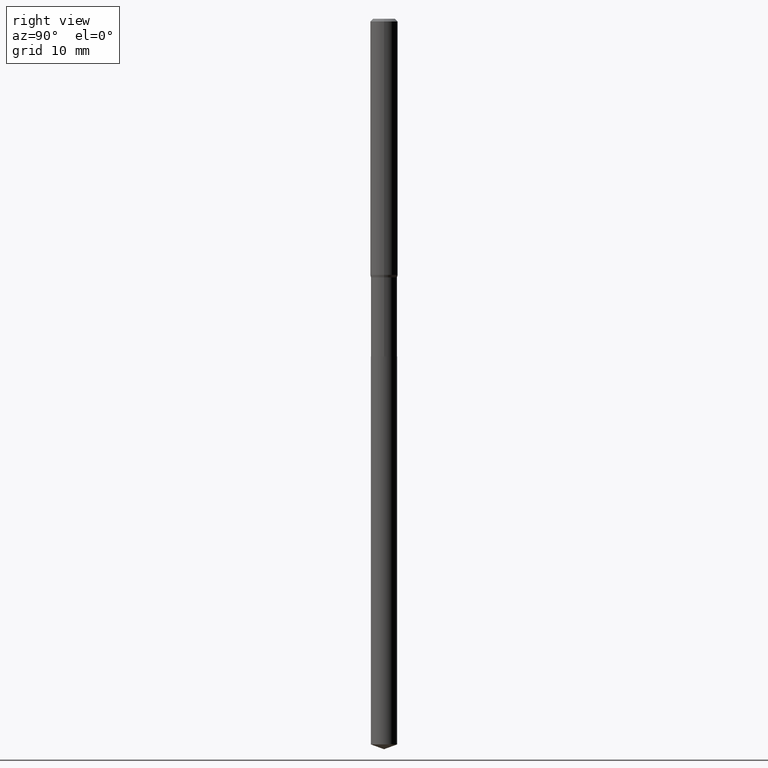
[diagram: clean part render]
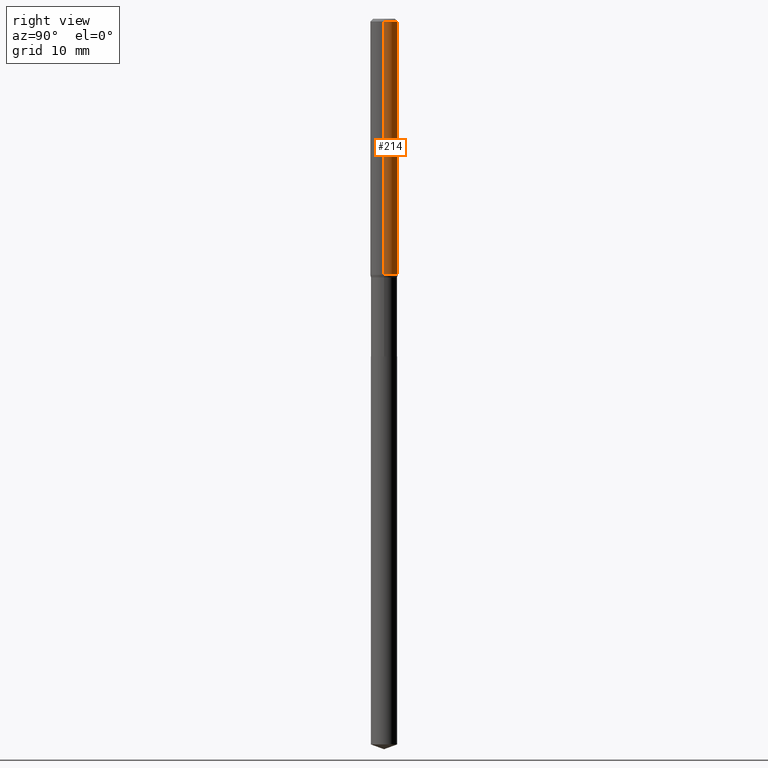
[diagram: same view with one face highlighted and labeled with its STEP entity id]
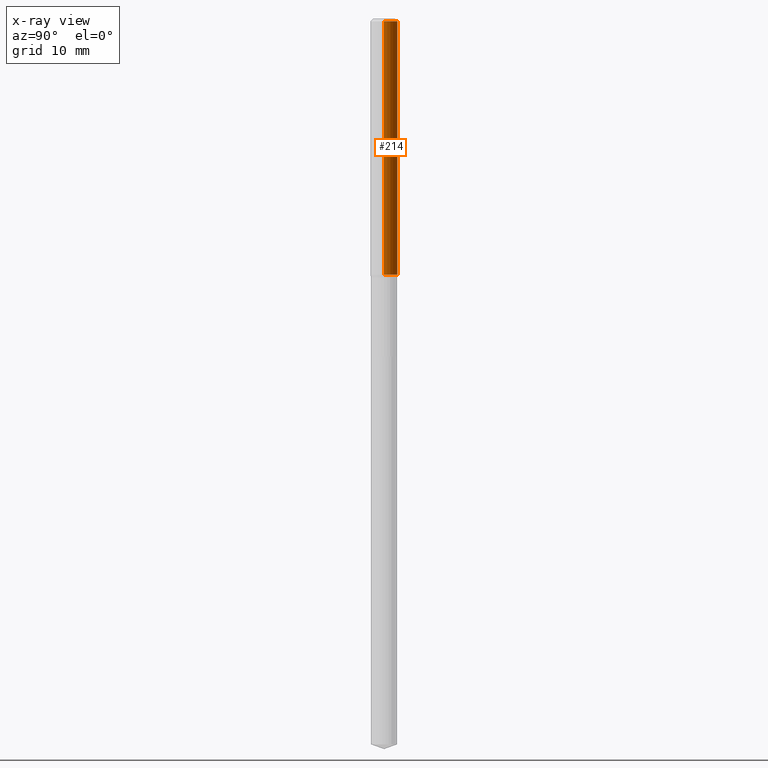
[diagram: x-ray of the same camera — body ghosted, the highlighted face saturated]
A machine part, right view. The second image highlights one B-rep face of the part: STEP entity #214.
The next image is the same camera in x-ray: the body ghosted, the highlighted face saturated — about 0% of this face is hidden behind the body in this view.
In plain terms, the highlighted cylindrical surface (edge-blend (fillet) strip) has radius 2.0003 mm, axis along (-0, 0, 1).
Its self-contained STEP definition (entity closure, byte-faithful):
#2 = ORIENTED_EDGE ( 'NONE', *, *, #97, .F. ) ;
#5 = AXIS2_PLACEMENT_3D ( 'NONE', #483, #231, #239 ) ;
#38 = EDGE_CURVE ( 'NONE', #207, #255, #92, .T. ) ;
#49 = VECTOR ( 'NONE', #480, 39.37007874015748143 ) ;
#69 = CARTESIAN_POINT ( 'NONE',  ( 0.07875000000000018097, -5.657451113428968770E-15, -1.462858399310101642 ) ) ;
#92 = LINE ( 'NONE', #414, #49 ) ;
#95 = DIRECTION ( 'NONE',  ( 1.000000000000000000, -6.982962677686265922E-15, 0.000000000000000000 ) ) ;
#97 = EDGE_CURVE ( 'NONE', #366, #255, #167, .T. ) ;
#111 = DIRECTION ( 'NONE',  ( -2.445468806185136597E-29, 3.491481338843145583E-15, 1.000000000000000000 ) ) ;
#114 = CARTESIAN_POINT ( 'NONE',  ( -0.07875000000000000056, -2.021714412412896211E-15, -0.01575000000000009726 ) ) ;
#116 = AXIS2_PLACEMENT_3D ( 'NONE', #439, #346, #95 ) ;
#124 = EDGE_CURVE ( 'NONE', #210, #366, #437, .T. ) ;
#139 = CIRCLE ( 'NONE', #285, 0.07875000000000018097 ) ;
#153 = FACE_OUTER_BOUND ( 'NONE', #334, .T. ) ;
#167 = CIRCLE ( 'NONE', #116, 0.07875000000000000056 ) ;
#197 = CARTESIAN_POINT ( 'NONE',  ( 3.577374583378773658E-29, -5.107542802561173846E-15, -1.462858399310101642 ) ) ;
#207 = VERTEX_POINT ( 'NONE', #360 ) ;
#210 = VERTEX_POINT ( 'NONE', #69 ) ;
#214 = ADVANCED_FACE ( 'NONE', ( #153 ), #237, .T. ) ;
#220 = ORIENTED_EDGE ( 'NONE', *, *, #38, .T. ) ;
#231 = DIRECTION ( 'NONE',  ( -2.445468806185136597E-29, 3.491481338843145583E-15, 1.000000000000000000 ) ) ;
#237 = CYLINDRICAL_SURFACE ( 'NONE', #5, 0.07875000000000008382 ) ;
#239 = DIRECTION ( 'NONE',  ( 1.000000000000000000, -6.982962677686267499E-15, 4.876176775795935232E-29 ) ) ;
#254 = CARTESIAN_POINT ( 'NONE',  ( 0.07875000000000000056, -6.048991419545733705E-16, -0.01575000000000009726 ) ) ;
#255 = VERTEX_POINT ( 'NONE', #114 ) ;
#273 = DIRECTION ( 'NONE',  ( 1.000000000000000000, -6.982962677686269866E-15, 0.000000000000000000 ) ) ;
#284 = ORIENTED_EDGE ( 'NONE', *, *, #124, .F. ) ;
#285 = AXIS2_PLACEMENT_3D ( 'NONE', #197, #111, #273 ) ;
#297 = CARTESIAN_POINT ( 'NONE',  ( 0.07875000000000008382, -5.499083108677941345E-16, 3.839989210939303220E-30 ) ) ;
#308 = EDGE_CURVE ( 'NONE', #210, #207, #139, .T. ) ;
#334 = EDGE_LOOP ( 'NONE', ( #425, #220, #2, #284 ) ) ;
#346 = DIRECTION ( 'NONE',  ( -2.445468806185136597E-29, 3.491481338843145583E-15, 1.000000000000000000 ) ) ;
#360 = CARTESIAN_POINT ( 'NONE',  ( -0.07875000000000018097, -4.547990398150093467E-15, -1.462858399310101642 ) ) ;
#366 = VERTEX_POINT ( 'NONE', #254 ) ;
#399 = VECTOR ( 'NONE', #443, 39.37007874015748143 ) ;
#414 = CARTESIAN_POINT ( 'NONE',  ( -0.07875000000000008382, 5.595524044110794920E-16, -3.873661383575742696E-30 ) ) ;
#425 = ORIENTED_EDGE ( 'NONE', *, *, #308, .T. ) ;
#437 = LINE ( 'NONE', #297, #399 ) ;
#439 = CARTESIAN_POINT ( 'NONE',  ( 3.851613369741614361E-31, -5.499083108677988307E-17, -0.01575000000000009726 ) ) ;
#443 = DIRECTION ( 'NONE',  ( -2.445468806185136877E-29, 3.491481338843145188E-15, 1.000000000000000000 ) ) ;
#480 = DIRECTION ( 'NONE',  ( -2.445468806185136877E-29, 3.491481338843145188E-15, 1.000000000000000000 ) ) ;
#483 = CARTESIAN_POINT ( 'NONE',  ( 0.000000000000000000, 0.000000000000000000, 0.000000000000000000 ) ) ;